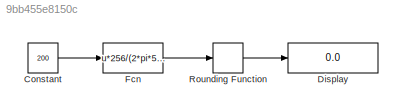
MODEL slx_9bb455e8150c
KIND model
BLOCK [Constant] Constant
  Value = 200
BLOCK [Display] Display
  Decimation = 1
  Lockdown = off
  Ports = [1]
BLOCK [Fcn] Fcn
  Expr = u*256/(2*pi*50)
BLOCK [Rounding] Rounding Function
LINE Constant:1 -> Fcn:1
LINE Fcn:1 -> Rounding Function:1
LINE Rounding Function:1 -> Display:1
